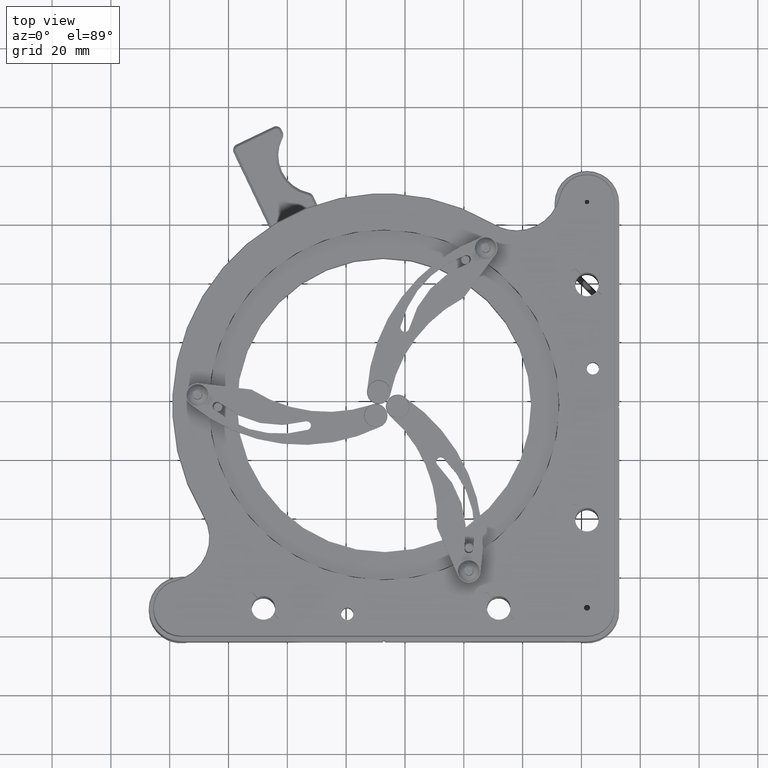
[diagram: clean part render]
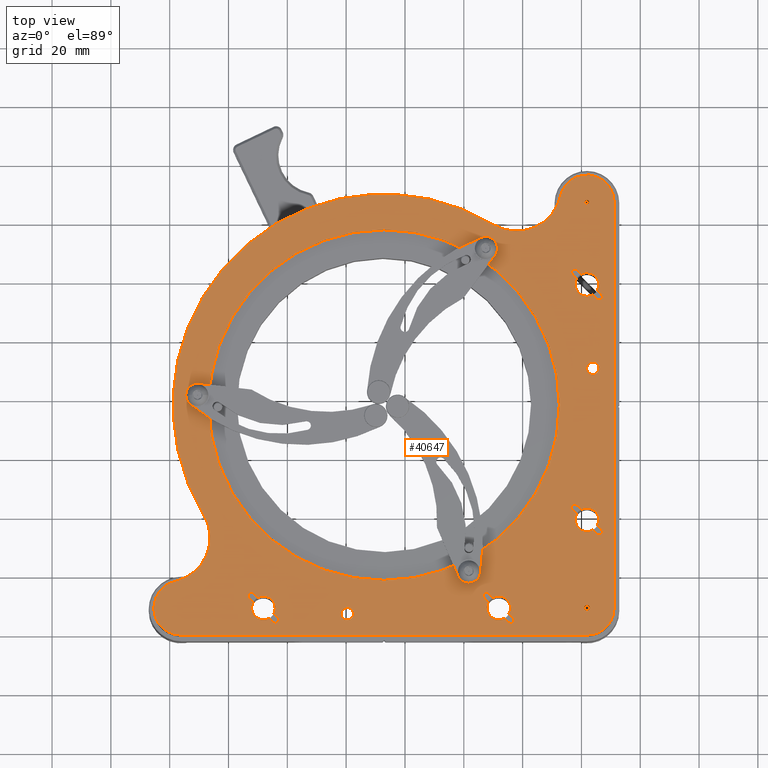
[diagram: same view with one face highlighted and labeled with its STEP entity id]
A machine part, top view. The second image highlights one B-rep face of the part: STEP entity #40647.
In plain terms, the highlighted planar face has unit normal (0, 0, 1).
Its self-contained STEP definition (entity closure, byte-faithful):
#2 = AXIS2_PLACEMENT_3D ( 'NONE', #2070, #14815, #40204 ) ;
#124 = ORIENTED_EDGE ( 'NONE', *, *, #26024, .T. ) ;
#172 = CARTESIAN_POINT ( 'NONE',  ( 101.8668844728350109, 58.71521029692328852, 101.7358086520721656 ) ) ;
#192 = EDGE_CURVE ( 'NONE', #4606, #10427, #24524, .T. ) ;
#358 = LINE ( 'NONE', #10639, #21539 ) ;
#369 = DIRECTION ( 'NONE',  ( 0.000000000000000000, 0.000000000000000000, 1.000000000000000000 ) ) ;
#505 = DIRECTION ( 'NONE',  ( -0.7071067811865491270, 0.7071067811865459074, 0.000000000000000000 ) ) ;
#539 = CARTESIAN_POINT ( 'NONE',  ( 67.45146319628928211, 73.97079136145769951, 101.7358086520721656 ) ) ;
#552 = CIRCLE ( 'NONE', #19903, 3.000000000000006661 ) ;
#592 = VERTEX_POINT ( 'NONE', #26783 ) ;
#643 = VERTEX_POINT ( 'NONE', #10748 ) ;
#705 = EDGE_CURVE ( 'NONE', #7742, #21427, #37984, .T. ) ;
#767 = ORIENTED_EDGE ( 'NONE', *, *, #29764, .F. ) ;
#915 = CARTESIAN_POINT ( 'NONE',  ( -3.218723397918454854, -54.71425759183146909, 101.7358086520721656 ) ) ;
#989 = AXIS2_PLACEMENT_3D ( 'NONE', #2164, #8661, #18237 ) ;
#1505 = CARTESIAN_POINT ( 'NONE',  ( 101.8668844728350109, 86.71521029692330274, 101.7358086520721656 ) ) ;
#1601 = CARTESIAN_POINT ( 'NONE',  ( 67.45146319628928211, 70.97079136145769951, 101.7358086520721656 ) ) ;
#1676 = CARTESIAN_POINT ( 'NONE',  ( 92.84406227035934478, 88.75265465260807218, 101.7358086520721656 ) ) ;
#1683 = CIRCLE ( 'NONE', #989, 1.049999999999981615 ) ;
#1698 = ORIENTED_EDGE ( 'NONE', *, *, #2356, .F. ) ;
#1724 = EDGE_CURVE ( 'NONE', #31429, #24226, #5086, .T. ) ;
#1779 = DIRECTION ( 'NONE',  ( -2.220446049250313081E-16, 1.000000000000000000, 0.000000000000000000 ) ) ;
#1839 = EDGE_LOOP ( 'NONE', ( #15439, #19803 ) ) ;
#1871 = ORIENTED_EDGE ( 'NONE', *, *, #39168, .T. ) ;
#1933 = VECTOR ( 'NONE', #22653, 999.9999999999998863 ) ;
#1941 = ORIENTED_EDGE ( 'NONE', *, *, #17736, .F. ) ;
#1944 = CARTESIAN_POINT ( 'NONE',  ( -41.90240936855207821, -44.05445440160329440, 101.7358086520721656 ) ) ;
#1949 = LINE ( 'NONE', #14690, #5251 ) ;
#1980 = VERTEX_POINT ( 'NONE', #30888 ) ;
#2013 = VERTEX_POINT ( 'NONE', #40639 ) ;
#2030 = CARTESIAN_POINT ( 'NONE',  ( -12.30504553616561303, -46.06285969407609571, 101.7358086520721656 ) ) ;
#2070 = CARTESIAN_POINT ( 'NONE',  ( 71.86688447283502512, -51.28478970307669726, 101.7358086520721656 ) ) ;
#2164 = CARTESIAN_POINT ( 'NONE',  ( 97.69495446383437809, 62.88714030592393556, 101.7358086520721656 ) ) ;
#2215 = EDGE_LOOP ( 'NONE', ( #11873, #6128 ) ) ;
#2278 = EDGE_CURVE ( 'NONE', #24255, #20476, #26375, .T. ) ;
#2309 = CARTESIAN_POINT ( 'NONE',  ( 101.8668844728350109, -21.28478970307671503, 101.7358086520721656 ) ) ;
#2347 = CIRCLE ( 'NONE', #34288, 4.000000000000007105 ) ;
#2356 = EDGE_CURVE ( 'NONE', #34133, #33261, #22363, .T. ) ;
#2414 = CARTESIAN_POINT ( 'NONE',  ( -8.133115527164974878, -51.28478970307672569, 101.7358086520721656 ) ) ;
#2417 = CARTESIAN_POINT ( 'NONE',  ( -30.54609098408041135, 21.03854351835087400, 101.7358086520721656 ) ) ;
#2464 = VERTEX_POINT ( 'NONE', #22266 ) ;
#2494 = VERTEX_POINT ( 'NONE', #19348 ) ;
#2501 = EDGE_CURVE ( 'NONE', #39215, #7742, #2347, .T. ) ;
#2509 = CARTESIAN_POINT ( 'NONE',  ( -36.13311552716498909, -51.28478970307672569, 101.7358086520721656 ) ) ;
#2562 = VERTEX_POINT ( 'NONE', #30170 ) ;
#2616 = DIRECTION ( 'NONE',  ( 0.7071067811865493491, -0.7071067811865456854, -0.000000000000000000 ) ) ;
#2650 = ORIENTED_EDGE ( 'NONE', *, *, #22900, .F. ) ;
#2702 = ORIENTED_EDGE ( 'NONE', *, *, #13205, .T. ) ;
#2798 = CIRCLE ( 'NONE', #34838, 4.000000000000010658 ) ;
#2800 = ORIENTED_EDGE ( 'NONE', *, *, #13859, .F. ) ;
#2896 = VERTEX_POINT ( 'NONE', #13400 ) ;
#2926 = FACE_BOUND ( 'NONE', #15202, .T. ) ;
#3066 = DIRECTION ( 'NONE',  ( 0.000000000000000000, 0.000000000000000000, 1.000000000000000000 ) ) ;
#3072 = VERTEX_POINT ( 'NONE', #37317 ) ;
#3086 = CARTESIAN_POINT ( 'NONE',  ( 101.8668844728350109, 86.71521029692330274, 101.7358086520721656 ) ) ;
#3099 = DIRECTION ( 'NONE',  ( -0.000000000000000000, -0.000000000000000000, -1.000000000000000000 ) ) ;
#3276 = DIRECTION ( 'NONE',  ( 0.000000000000000000, 0.000000000000000000, 1.000000000000000000 ) ) ;
#3307 = DIRECTION ( 'NONE',  ( 0.000000000000000000, 0.000000000000000000, 1.000000000000000000 ) ) ;
#3341 = FACE_BOUND ( 'NONE', #31637, .T. ) ;
#3358 = AXIS2_PLACEMENT_3D ( 'NONE', #40811, #18352, #25221 ) ;
#3381 = CIRCLE ( 'NONE', #36077, 3.000000000000002665 ) ;
#3420 = CARTESIAN_POINT ( 'NONE',  ( 32.86688447283498959, 77.31521029692328284, 101.7358086520721656 ) ) ;
#3526 = VERTEX_POINT ( 'NONE', #34341 ) ;
#3608 = VERTEX_POINT ( 'NONE', #539 ) ;
#3657 = DIRECTION ( 'NONE',  ( 0.000000000000000000, 1.000000000000000000, 0.000000000000000000 ) ) ;
#3747 = DIRECTION ( 'NONE',  ( 0.000000000000000000, 1.000000000000000000, 0.000000000000000000 ) ) ;
#3802 = CARTESIAN_POINT ( 'NONE',  ( 66.95249234358850288, -47.85532181432196808, 101.7358086520721656 ) ) ;
#3803 = EDGE_CURVE ( 'NONE', #2896, #24255, #34283, .T. ) ;
#3942 = VERTEX_POINT ( 'NONE', #18076 ) ;
#3943 = ORIENTED_EDGE ( 'NONE', *, *, #10500, .T. ) ;
#4112 = CARTESIAN_POINT ( 'NONE',  ( 101.8668844728349967, 87.46521029692330274, 101.7358086520721656 ) ) ;
#4158 = DIRECTION ( 'NONE',  ( 0.000000000000000000, 1.000000000000000000, 0.000000000000000000 ) ) ;
#4293 = CARTESIAN_POINT ( 'NONE',  ( 97.69495446383437809, -17.11285969407607510, 101.7358086520721656 ) ) ;
#4327 = DIRECTION ( 'NONE',  ( 2.602085213965203542E-15, 1.000000000000000000, 0.000000000000000000 ) ) ;
#4334 = EDGE_CURVE ( 'NONE', #643, #31429, #1949, .T. ) ;
#4343 = VERTEX_POINT ( 'NONE', #3802 ) ;
#4450 = AXIS2_PLACEMENT_3D ( 'NONE', #27394, #9039, #18217 ) ;
#4518 = AXIS2_PLACEMENT_3D ( 'NONE', #1505, #25460, #3747 ) ;
#4582 = CARTESIAN_POINT ( 'NONE',  ( 71.86688447283502512, -51.28478970307669726, 101.7358086520721656 ) ) ;
#4587 = DIRECTION ( 'NONE',  ( -0.7071067811865491270, 0.7071067811865459074, 0.000000000000000000 ) ) ;
#4600 = CARTESIAN_POINT ( 'NONE',  ( -8.133115527164973102, -55.28478970307673990, 101.7358086520721656 ) ) ;
#4606 = VERTEX_POINT ( 'NONE', #31045 ) ;
#4780 = DIRECTION ( 'NONE',  ( -0.7071067811865485719, 0.7071067811865465735, 0.000000000000000000 ) ) ;
#4969 = VECTOR ( 'NONE', #18140, 1000.000000000000000 ) ;
#4997 = CARTESIAN_POINT ( 'NONE',  ( 106.0388144818356437, 54.54328028792264860, 101.7358086520721656 ) ) ;
#5062 = DIRECTION ( 'NONE',  ( 0.000000000000000000, 1.000000000000000000, 0.000000000000000000 ) ) ;
#5086 = CIRCLE ( 'NONE', #15755, 71.75000000000004263 ) ;
#5141 = CIRCLE ( 'NONE', #4450, 4.000000000000010658 ) ;
#5185 = EDGE_CURVE ( 'NONE', #19740, #2494, #18480, .T. ) ;
#5251 = VECTOR ( 'NONE', #28017, 1000.000000000000000 ) ;
#5287 = AXIS2_PLACEMENT_3D ( 'NONE', #24491, #8231, #21370 ) ;
#5414 = DIRECTION ( 'NONE',  ( 0.000000000000000000, 1.000000000000000000, 0.000000000000000000 ) ) ;
#5423 = CARTESIAN_POINT ( 'NONE',  ( -38.17055988284980117, -42.26196750060095297, 101.7358086520721656 ) ) ;
#5480 = CIRCLE ( 'NONE', #28784, 4.000000000000010658 ) ;
#5623 = DIRECTION ( 'NONE',  ( 0.000000000000000000, 1.000000000000000000, 0.000000000000000000 ) ) ;
#5639 = CARTESIAN_POINT ( 'NONE',  ( 67.69495446383439230, -47.11285969407608576, 101.7358086520721656 ) ) ;
#5646 = DIRECTION ( 'NONE',  ( 0.000000000000000000, 0.000000000000000000, 1.000000000000000000 ) ) ;
#5696 = ORIENTED_EDGE ( 'NONE', *, *, #11036, .F. ) ;
#5818 = AXIS2_PLACEMENT_3D ( 'NONE', #2417, #21217, #15162 ) ;
#5918 = CARTESIAN_POINT ( 'NONE',  ( 77.96859863925072887, 92.11168453630460817, 101.7358086520721656 ) ) ;
#6076 = DIRECTION ( 'NONE',  ( -1.934186454050795746E-16, 1.000000000000000000, 0.000000000000000000 ) ) ;
#6128 = ORIENTED_EDGE ( 'NONE', *, *, #41099, .T. ) ;
#6154 = CARTESIAN_POINT ( 'NONE',  ( -3.218723397918454854, -54.71425759183146909, 101.7358086520721656 ) ) ;
#6220 = VERTEX_POINT ( 'NONE', #20054 ) ;
#6243 = CIRCLE ( 'NONE', #23479, 4.000000000000010658 ) ;
#6247 = CARTESIAN_POINT ( 'NONE',  ( -8.133115527164974878, -51.28478970307672569, 101.7358086520721656 ) ) ;
#6371 = DIRECTION ( 'NONE',  ( 0.000000000000000000, 1.000000000000000000, 0.000000000000000000 ) ) ;
#6498 = FACE_BOUND ( 'NONE', #1839, .T. ) ;
#6526 = DIRECTION ( 'NONE',  ( -2.168404344971002952E-15, 1.000000000000000000, 0.000000000000000000 ) ) ;
#6538 = CIRCLE ( 'NONE', #41097, 71.74999999999998579 ) ;
#6664 = CARTESIAN_POINT ( 'NONE',  ( 101.8668844728350109, -17.28478970307670792, 101.7358086520721656 ) ) ;
#6689 = DIRECTION ( 'NONE',  ( 0.000000000000000000, 0.000000000000000000, 1.000000000000000000 ) ) ;
#6690 = AXIS2_PLACEMENT_3D ( 'NONE', #13478, #17386, #5062 ) ;
#6712 = CARTESIAN_POINT ( 'NONE',  ( 101.8668844728350109, 58.71521029692328852, 101.7358086520721656 ) ) ;
#6729 = CARTESIAN_POINT ( 'NONE',  ( 67.69495446383439230, -46.06285969407608150, 101.7358086520721656 ) ) ;
#6877 = ORIENTED_EDGE ( 'NONE', *, *, #192, .T. ) ;
#6946 = ORIENTED_EDGE ( 'NONE', *, *, #28898, .F. ) ;
#6955 = ORIENTED_EDGE ( 'NONE', *, *, #23599, .F. ) ;
#7135 = EDGE_CURVE ( 'NONE', #8685, #34070, #37136, .T. ) ;
#7155 = AXIS2_PLACEMENT_3D ( 'NONE', #18267, #30981, #27857 ) ;
#7267 = EDGE_LOOP ( 'NONE', ( #6955, #29589 ) ) ;
#7274 = VERTEX_POINT ( 'NONE', #21953 ) ;
#7295 = EDGE_CURVE ( 'NONE', #2896, #3072, #5480, .T. ) ;
#7344 = DIRECTION ( 'NONE',  ( -1.934186454050794267E-16, 1.000000000000000000, 0.000000000000000000 ) ) ;
#7367 = CARTESIAN_POINT ( 'NONE',  ( 96.95249234358850288, 62.14467818567806034, 101.7358086520721656 ) ) ;
#7413 = CIRCLE ( 'NONE', #18079, 2.999999999999999556 ) ;
#7434 = ORIENTED_EDGE ( 'NONE', *, *, #35240, .F. ) ;
#7645 = ORIENTED_EDGE ( 'NONE', *, *, #22814, .T. ) ;
#7681 = ORIENTED_EDGE ( 'NONE', *, *, #17855, .T. ) ;
#7742 = VERTEX_POINT ( 'NONE', #40814 ) ;
#7824 = CIRCLE ( 'NONE', #13154, 4.000000000000010658 ) ;
#7866 = CARTESIAN_POINT ( 'NONE',  ( 94.63654917136157962, 92.48450413831038475, 101.7358086520721656 ) ) ;
#8151 = CARTESIAN_POINT ( 'NONE',  ( 101.8668844728350109, -21.28478970307671503, 101.7358086520721656 ) ) ;
#8223 = VERTEX_POINT ( 'NONE', #29322 ) ;
#8231 = DIRECTION ( 'NONE',  ( 0.000000000000000000, 0.000000000000000000, 1.000000000000000000 ) ) ;
#8242 = ORIENTED_EDGE ( 'NONE', *, *, #34250, .F. ) ;
#8245 = ORIENTED_EDGE ( 'NONE', *, *, #5185, .F. ) ;
#8273 = ORIENTED_EDGE ( 'NONE', *, *, #11503, .F. ) ;
#8492 = DIRECTION ( 'NONE',  ( -2.328487887217190883E-16, 1.000000000000000000, 0.000000000000000000 ) ) ;
#8516 = CARTESIAN_POINT ( 'NONE',  ( 32.86688447283500381, 17.71521029692329208, 101.7358086520721656 ) ) ;
#8532 = EDGE_LOOP ( 'NONE', ( #8245, #14719 ) ) ;
#8661 = DIRECTION ( 'NONE',  ( 0.000000000000000000, 0.000000000000000000, 1.000000000000000000 ) ) ;
#8685 = VERTEX_POINT ( 'NONE', #22982 ) ;
#8705 = AXIS2_PLACEMENT_3D ( 'NONE', #4582, #20658, #5414 ) ;
#8726 = VERTEX_POINT ( 'NONE', #6729 ) ;
#8782 = DIRECTION ( 'NONE',  ( 0.000000000000000000, 0.000000000000000000, 1.000000000000000000 ) ) ;
#8792 = DIRECTION ( 'NONE',  ( 0.000000000000000000, 1.000000000000000000, 0.000000000000000000 ) ) ;
#8973 = CARTESIAN_POINT ( 'NONE',  ( 101.8668844728349967, 86.71521029692330274, 101.7358086520721656 ) ) ;
#9039 = DIRECTION ( 'NONE',  ( -0.000000000000000000, -0.000000000000000000, -1.000000000000000000 ) ) ;
#9047 = VECTOR ( 'NONE', #505, 1000.000000000000000 ) ;
#9058 = EDGE_CURVE ( 'NONE', #35125, #23797, #18374, .T. ) ;
#9116 = CARTESIAN_POINT ( 'NONE',  ( 105.2963523615897827, -26.19918183232322662, 101.7358086520721656 ) ) ;
#9121 = CARTESIAN_POINT ( 'NONE',  ( -12.30504553616561303, -47.11285969407609997, 101.7358086520721656 ) ) ;
#9167 = CARTESIAN_POINT ( 'NONE',  ( -4.703647638410211940, -56.19918183232323372, 101.7358086520721656 ) ) ;
#9310 = CARTESIAN_POINT ( 'NONE',  ( 68.43741658408025330, -46.37039757383020344, 101.7358086520721656 ) ) ;
#9385 = LINE ( 'NONE', #41227, #22044 ) ;
#9432 = FACE_BOUND ( 'NONE', #35053, .T. ) ;
#9477 = DIRECTION ( 'NONE',  ( 0.000000000000000000, 1.000000000000000000, 0.000000000000000000 ) ) ;
#9628 = FACE_BOUND ( 'NONE', #37146, .T. ) ;
#9638 = DIRECTION ( 'NONE',  ( 0.000000000000000000, 1.000000000000000000, 0.000000000000000000 ) ) ;
#9642 = CARTESIAN_POINT ( 'NONE',  ( -4.703647638410211940, -56.19918183232323372, 101.7358086520721656 ) ) ;
#9794 = DIRECTION ( 'NONE',  ( 1.000000000000000000, 2.220446049250313081E-16, 0.000000000000000000 ) ) ;
#9837 = CARTESIAN_POINT ( 'NONE',  ( 32.86688447283500381, 17.71521029692329208, 101.7358086520721656 ) ) ;
#9890 = AXIS2_PLACEMENT_3D ( 'NONE', #26549, #11126, #30291 ) ;
#9925 = CARTESIAN_POINT ( 'NONE',  ( 20.36688447283503578, -53.28478970307672569, 101.7358086520721656 ) ) ;
#10112 = VERTEX_POINT ( 'NONE', #36501 ) ;
#10427 = VERTEX_POINT ( 'NONE', #10856 ) ;
#10457 = CARTESIAN_POINT ( 'NONE',  ( 98.39518253168662909, -19.29801200242005876, 101.7358086520721656 ) ) ;
#10500 = EDGE_CURVE ( 'NONE', #24226, #35125, #36718, .T. ) ;
#10639 = CARTESIAN_POINT ( 'NONE',  ( 105.2963523615897827, 53.80081816767677338, 101.7358086520721656 ) ) ;
#10663 = CARTESIAN_POINT ( 'NONE',  ( 106.7812766020815189, 55.28574240816850960, 101.7358086520721656 ) ) ;
#10689 = AXIS2_PLACEMENT_3D ( 'NONE', #8516, #15381, #27685 ) ;
#10748 = CARTESIAN_POINT ( 'NONE',  ( -38.79799576762705016, 21.20912502402109467, 101.7358086520721656 ) ) ;
#10772 = CARTESIAN_POINT ( 'NONE',  ( -6.146337826508328384, -54.75649164422512882, 101.7358086520721656 ) ) ;
#10813 = CARTESIAN_POINT ( 'NONE',  ( 67.45146319628928211, 70.97079136145769951, 101.7358086520721656 ) ) ;
#10845 = VERTEX_POINT ( 'NONE', #27044 ) ;
#10856 = CARTESIAN_POINT ( 'NONE',  ( 111.1168844728349967, 86.71521029692333116, 101.7358086520721656 ) ) ;
#10886 = VERTEX_POINT ( 'NONE', #17049 ) ;
#11003 = VECTOR ( 'NONE', #32114, 1000.000000000000000 ) ;
#11036 = EDGE_CURVE ( 'NONE', #20005, #2013, #30696, .T. ) ;
#11058 = AXIS2_PLACEMENT_3D ( 'NONE', #2509, #5646, #8792 ) ;
#11126 = DIRECTION ( 'NONE',  ( 0.000000000000000000, 0.000000000000000000, 1.000000000000000000 ) ) ;
#11164 = DIRECTION ( 'NONE',  ( 0.000000000000000000, 1.000000000000000000, 0.000000000000000000 ) ) ;
#11209 = VERTEX_POINT ( 'NONE', #35722 ) ;
#11289 = ORIENTED_EDGE ( 'NONE', *, *, #13762, .F. ) ;
#11402 = AXIS2_PLACEMENT_3D ( 'NONE', #39680, #14265, #11164 ) ;
#11489 = CARTESIAN_POINT ( 'NONE',  ( 101.8668844728349967, 86.71521029692330274, 101.7358086520721656 ) ) ;
#11503 = EDGE_CURVE ( 'NONE', #34941, #24406, #17413, .T. ) ;
#11570 = CARTESIAN_POINT ( 'NONE',  ( -10.11989322782162759, -47.81308776192832255, 101.7358086520721656 ) ) ;
#11586 = VECTOR ( 'NONE', #4587, 1000.000000000000000 ) ;
#11616 = CIRCLE ( 'NONE', #18934, 4.000000000000010658 ) ;
#11720 = AXIS2_PLACEMENT_3D ( 'NONE', #26678, #27302, #30011 ) ;
#11734 = CARTESIAN_POINT ( 'NONE',  ( 75.29635236158978273, -56.19918183232320530, 101.7358086520721656 ) ) ;
#11873 = ORIENTED_EDGE ( 'NONE', *, *, #27130, .T. ) ;
#11901 = CARTESIAN_POINT ( 'NONE',  ( 76.78127660208154737, -54.71425759183146909, 101.7358086520721656 ) ) ;
#12083 = CARTESIAN_POINT ( 'NONE',  ( 106.7812766020815189, -24.71425759183149040, 101.7358086520721656 ) ) ;
#12109 = ORIENTED_EDGE ( 'NONE', *, *, #3803, .F. ) ;
#12112 = VERTEX_POINT ( 'NONE', #4112 ) ;
#12116 = VERTEX_POINT ( 'NONE', #7866 ) ;
#12158 = ORIENTED_EDGE ( 'NONE', *, *, #16259, .F. ) ;
#12291 = LINE ( 'NONE', #9167, #4969 ) ;
#12293 = CARTESIAN_POINT ( 'NONE',  ( 97.69495446383437809, -16.06285969407609215, 101.7358086520721656 ) ) ;
#12318 = EDGE_CURVE ( 'NONE', #28506, #2464, #32168, .T. ) ;
#12377 = DIRECTION ( 'NONE',  ( 0.000000000000000000, 0.000000000000000000, 1.000000000000000000 ) ) ;
#12606 = CARTESIAN_POINT ( 'NONE',  ( 103.8668844728350109, 28.11521029692330842, 101.7358086520721656 ) ) ;
#12715 = LINE ( 'NONE', #16248, #31793 ) ;
#12725 = ORIENTED_EDGE ( 'NONE', *, *, #21538, .F. ) ;
#12754 = FACE_OUTER_BOUND ( 'NONE', #29730, .T. ) ;
#12767 = ORIENTED_EDGE ( 'NONE', *, *, #29249, .T. ) ;
#12803 = ORIENTED_EDGE ( 'NONE', *, *, #27361, .T. ) ;
#12954 = AXIS2_PLACEMENT_3D ( 'NONE', #2309, #40447, #38767 ) ;
#12972 = CARTESIAN_POINT ( 'NONE',  ( 105.2963523615897827, -26.19918183232322662, 101.7358086520721656 ) ) ;
#13001 = VERTEX_POINT ( 'NONE', #23866 ) ;
#13154 = AXIS2_PLACEMENT_3D ( 'NONE', #28110, #3066, #15809 ) ;
#13202 = CARTESIAN_POINT ( 'NONE',  ( -11.60481746831338512, -49.29801200242008719, 101.7358086520721656 ) ) ;
#13205 = EDGE_CURVE ( 'NONE', #26307, #3526, #28901, .T. ) ;
#13268 = DIRECTION ( 'NONE',  ( 0.7071067811865473507, -0.7071067811865477948, -0.000000000000000000 ) ) ;
#13337 = VECTOR ( 'NONE', #18189, 1000.000000000000000 ) ;
#13338 = DIRECTION ( 'NONE',  ( 0.000000000000000000, 1.000000000000000000, 0.000000000000000000 ) ) ;
#13368 = VECTOR ( 'NONE', #4780, 1000.000000000000000 ) ;
#13400 = CARTESIAN_POINT ( 'NONE',  ( 73.85366217349168494, -54.75649164422508619, 101.7358086520721656 ) ) ;
#13447 = ORIENTED_EDGE ( 'NONE', *, *, #14737, .F. ) ;
#13478 = CARTESIAN_POINT ( 'NONE',  ( 101.8668844728350109, 58.71521029692328852, 101.7358086520721656 ) ) ;
#13527 = AXIS2_PLACEMENT_3D ( 'NONE', #2414, #34290, #28271 ) ;
#13585 = AXIS2_PLACEMENT_3D ( 'NONE', #5918, #18646, #9477 ) ;
#13628 = ORIENTED_EDGE ( 'NONE', *, *, #35245, .T. ) ;
#13692 = ORIENTED_EDGE ( 'NONE', *, *, #26424, .F. ) ;
#13711 = CARTESIAN_POINT ( 'NONE',  ( 101.8668844728350109, -25.28478970307671858, 101.7358086520721656 ) ) ;
#13762 = EDGE_CURVE ( 'NONE', #27757, #36379, #33564, .T. ) ;
#13856 = CIRCLE ( 'NONE', #4518, 9.249999999999896971 ) ;
#13859 = EDGE_CURVE ( 'NONE', #21437, #19236, #39181, .T. ) ;
#13900 = DIRECTION ( 'NONE',  ( 0.000000000000000000, 0.000000000000000000, 1.000000000000000000 ) ) ;
#13991 = ORIENTED_EDGE ( 'NONE', *, *, #31212, .T. ) ;
#14018 = CIRCLE ( 'NONE', #26672, 0.7500000000000006661 ) ;
#14145 = EDGE_CURVE ( 'NONE', #15900, #34941, #12291, .T. ) ;
#14158 = EDGE_CURVE ( 'NONE', #10427, #12116, #28280, .T. ) ;
#14265 = DIRECTION ( 'NONE',  ( 0.000000000000000000, 0.000000000000000000, 1.000000000000000000 ) ) ;
#14361 = ORIENTED_EDGE ( 'NONE', *, *, #35885, .T. ) ;
#14382 = EDGE_CURVE ( 'NONE', #13001, #14577, #1683, .T. ) ;
#14478 = DIRECTION ( 'NONE',  ( 0.000000000000000000, 1.000000000000000000, 0.000000000000000000 ) ) ;
#14577 = VERTEX_POINT ( 'NONE', #7367 ) ;
#14690 = CARTESIAN_POINT ( 'NONE',  ( -38.79799576762703595, -37.60577697055940405, 101.7358086520721656 ) ) ;
#14719 = ORIENTED_EDGE ( 'NONE', *, *, #16077, .F. ) ;
#14727 = VERTEX_POINT ( 'NONE', #20704 ) ;
#14737 = EDGE_CURVE ( 'NONE', #40227, #37304, #27573, .T. ) ;
#14752 = EDGE_CURVE ( 'NONE', #4343, #19970, #40250, .T. ) ;
#14815 = DIRECTION ( 'NONE',  ( -0.000000000000000000, -0.000000000000000000, -1.000000000000000000 ) ) ;
#14895 = ORIENTED_EDGE ( 'NONE', *, *, #39170, .F. ) ;
#15159 = EDGE_CURVE ( 'NONE', #35169, #19641, #19359, .T. ) ;
#15162 = DIRECTION ( 'NONE',  ( -0.8660254037844429265, -0.4999999999999924505, 0.000000000000000000 ) ) ;
#15179 = EDGE_CURVE ( 'NONE', #20476, #7274, #26697, .T. ) ;
#15202 = EDGE_LOOP ( 'NONE', ( #37516, #1698 ) ) ;
#15255 = AXIS2_PLACEMENT_3D ( 'NONE', #18303, #28298, #34531 ) ;
#15381 = DIRECTION ( 'NONE',  ( 0.000000000000000000, 0.000000000000000000, 1.000000000000000000 ) ) ;
#15439 = ORIENTED_EDGE ( 'NONE', *, *, #20773, .F. ) ;
#15485 = CARTESIAN_POINT ( 'NONE',  ( 71.86688447283502512, -51.28478970307669726, 101.7358086520721656 ) ) ;
#15494 = VECTOR ( 'NONE', #21331, 999.9999999999998863 ) ;
#15511 = DIRECTION ( 'NONE',  ( -0.7071067811865479058, 0.7071067811865471286, 0.000000000000000000 ) ) ;
#15677 = DIRECTION ( 'NONE',  ( 0.000000000000000000, 0.000000000000000000, 1.000000000000000000 ) ) ;
#15704 = CARTESIAN_POINT ( 'NONE',  ( -11.56258341591973782, -46.37039757383021765, 101.7358086520721656 ) ) ;
#15710 = CARTESIAN_POINT ( 'NONE',  ( -8.133115527164974878, -51.28478970307672569, 101.7358086520721656 ) ) ;
#15751 = CIRCLE ( 'NONE', #41087, 2.099999999999997868 ) ;
#15755 = AXIS2_PLACEMENT_3D ( 'NONE', #36070, #16731, #7344 ) ;
#15762 = ORIENTED_EDGE ( 'NONE', *, *, #30576, .F. ) ;
#15801 = CIRCLE ( 'NONE', #37078, 0.7500000000000006661 ) ;
#15809 = DIRECTION ( 'NONE',  ( 0.000000000000000000, 1.000000000000000000, 0.000000000000000000 ) ) ;
#15900 = VERTEX_POINT ( 'NONE', #10772 ) ;
#15911 = DIRECTION ( 'NONE',  ( 0.000000000000000000, 1.000000000000000000, 0.000000000000000000 ) ) ;
#15995 = AXIS2_PLACEMENT_3D ( 'NONE', #28495, #22661, #3657 ) ;
#16077 = EDGE_CURVE ( 'NONE', #2494, #19740, #7413, .T. ) ;
#16085 = FACE_BOUND ( 'NONE', #2215, .T. ) ;
#16098 = DIRECTION ( 'NONE',  ( 0.000000000000000000, 0.000000000000000000, 1.000000000000000000 ) ) ;
#16118 = CARTESIAN_POINT ( 'NONE',  ( 103.8668844728350109, 30.21521029692330629, 101.7358086520721656 ) ) ;
#16197 = CARTESIAN_POINT ( 'NONE',  ( 61.69528120629593104, -41.86370398903824253, 101.7358086520721656 ) ) ;
#16234 = DIRECTION ( 'NONE',  ( 0.000000000000000000, 0.000000000000000000, 1.000000000000000000 ) ) ;
#16241 = ORIENTED_EDGE ( 'NONE', *, *, #34014, .F. ) ;
#16248 = CARTESIAN_POINT ( 'NONE',  ( 101.8668844728350393, -60.53478970307669016, 101.7358086520721656 ) ) ;
#16259 = EDGE_CURVE ( 'NONE', #14727, #12112, #14018, .T. ) ;
#16472 = VECTOR ( 'NONE', #2616, 1000.000000000000114 ) ;
#16643 = ORIENTED_EDGE ( 'NONE', *, *, #14752, .F. ) ;
#16680 = CARTESIAN_POINT ( 'NONE',  ( 97.69495446383437809, 62.88714030592393556, 101.7358086520721656 ) ) ;
#16702 = AXIS2_PLACEMENT_3D ( 'NONE', #24324, #37012, #8492 ) ;
#16723 = VERTEX_POINT ( 'NONE', #29155 ) ;
#16731 = DIRECTION ( 'NONE',  ( 0.000000000000000000, 0.000000000000000000, 1.000000000000000000 ) ) ;
#17049 = CARTESIAN_POINT ( 'NONE',  ( 96.95249234358850288, -17.85532181432194321, 101.7358086520721656 ) ) ;
#17366 = EDGE_CURVE ( 'NONE', #3942, #6220, #36820, .T. ) ;
#17386 = DIRECTION ( 'NONE',  ( 0.000000000000000000, 0.000000000000000000, 1.000000000000000000 ) ) ;
#17413 = CIRCLE ( 'NONE', #11402, 1.050000000000009148 ) ;
#17524 = CARTESIAN_POINT ( 'NONE',  ( 76.78127660208154737, -54.71425759183146909, 101.7358086520721656 ) ) ;
#17546 = CARTESIAN_POINT ( 'NONE',  ( 98.43741658408022488, -16.37039757383020699, 101.7358086520721656 ) ) ;
#17584 = EDGE_CURVE ( 'NONE', #24406, #1980, #23785, .T. ) ;
#17736 = EDGE_CURVE ( 'NONE', #21427, #40979, #30223, .T. ) ;
#17822 = CARTESIAN_POINT ( 'NONE',  ( 20.36688447283503578, -53.28478970307672569, 101.7358086520721656 ) ) ;
#17855 = EDGE_CURVE ( 'NONE', #15900, #21448, #11616, .T. ) ;
#17868 = CARTESIAN_POINT ( 'NONE',  ( 111.1168844728349967, 86.71521029692333116, 101.7358086520721656 ) ) ;
#17875 = CIRCLE ( 'NONE', #19871, 1.049999999999984945 ) ;
#18076 = CARTESIAN_POINT ( 'NONE',  ( 105.3385864139834069, 56.72843259626662871, 101.7358086520721656 ) ) ;
#18079 = AXIS2_PLACEMENT_3D ( 'NONE', #34824, #16098, #19016 ) ;
#18140 = DIRECTION ( 'NONE',  ( 0.7071067811865491270, -0.7071067811865459074, -0.000000000000000000 ) ) ;
#18189 = DIRECTION ( 'NONE',  ( 0.7071067811865491270, -0.7071067811865459074, -0.000000000000000000 ) ) ;
#18213 = AXIS2_PLACEMENT_3D ( 'NONE', #16118, #12377, #15911 ) ;
#18217 = DIRECTION ( 'NONE',  ( -4.336808689942006396E-16, 1.000000000000000000, 0.000000000000000000 ) ) ;
#18237 = DIRECTION ( 'NONE',  ( 0.000000000000000000, 1.000000000000000000, 0.000000000000000000 ) ) ;
#18267 = CARTESIAN_POINT ( 'NONE',  ( -36.13311552716498909, -51.28478970307672569, 101.7358086520721656 ) ) ;
#18269 = ORIENTED_EDGE ( 'NONE', *, *, #39083, .T. ) ;
#18303 = CARTESIAN_POINT ( 'NONE',  ( 101.8668844728350109, -21.28478970307671503, 101.7358086520721656 ) ) ;
#18304 = ORIENTED_EDGE ( 'NONE', *, *, #35853, .T. ) ;
#18318 = DIRECTION ( 'NONE',  ( 0.000000000000000000, 0.000000000000000000, 1.000000000000000000 ) ) ;
#18352 = DIRECTION ( 'NONE',  ( 0.000000000000000000, 0.000000000000000000, 1.000000000000000000 ) ) ;
#18367 = DIRECTION ( 'NONE',  ( 0.000000000000000000, 1.000000000000000000, 0.000000000000000000 ) ) ;
#18374 = CIRCLE ( 'NONE', #11058, 9.250000000000056843 ) ;
#18412 = EDGE_LOOP ( 'NONE', ( #7434, #12158 ) ) ;
#18480 = CIRCLE ( 'NONE', #5818, 2.999999999999999556 ) ;
#18502 = CARTESIAN_POINT ( 'NONE',  ( 105.2963523615897827, 53.80081816767677338, 101.7358086520721656 ) ) ;
#18603 = FACE_BOUND ( 'NONE', #8532, .T. ) ;
#18646 = DIRECTION ( 'NONE',  ( -0.000000000000000000, -0.000000000000000000, -1.000000000000000000 ) ) ;
#18880 = AXIS2_PLACEMENT_3D ( 'NONE', #6712, #19433, #9638 ) ;
#18934 = AXIS2_PLACEMENT_3D ( 'NONE', #6247, #3099, #4327 ) ;
#19015 = DIRECTION ( 'NONE',  ( -0.000000000000000000, -0.000000000000000000, -1.000000000000000000 ) ) ;
#19016 = DIRECTION ( 'NONE',  ( -0.8660254037844429265, -0.4999999999999924505, 0.000000000000000000 ) ) ;
#19045 = CARTESIAN_POINT ( 'NONE',  ( 106.7812766020815189, -24.71425759183149040, 101.7358086520721656 ) ) ;
#19226 = EDGE_CURVE ( 'NONE', #14577, #30708, #358, .T. ) ;
#19236 = VERTEX_POINT ( 'NONE', #19589 ) ;
#19348 = CARTESIAN_POINT ( 'NONE',  ( -30.54609098408041135, 18.03854351835087044, 101.7358086520721656 ) ) ;
#19359 = CIRCLE ( 'NONE', #8705, 4.000000000000010658 ) ;
#19433 = DIRECTION ( 'NONE',  ( 0.000000000000000000, 0.000000000000000000, 1.000000000000000000 ) ) ;
#19475 = CARTESIAN_POINT ( 'NONE',  ( 61.69528120629593104, -35.86370398903823542, 101.7358086520721656 ) ) ;
#19525 = ORIENTED_EDGE ( 'NONE', *, *, #7295, .T. ) ;
#19539 = DIRECTION ( 'NONE',  ( 0.000000000000000000, 0.000000000000000000, 1.000000000000000000 ) ) ;
#19589 = CARTESIAN_POINT ( 'NONE',  ( 98.43741658408022488, 63.62960242616980366, 101.7358086520721656 ) ) ;
#19641 = VERTEX_POINT ( 'NONE', #32025 ) ;
#19738 = LINE ( 'NONE', #22858, #27709 ) ;
#19740 = VERTEX_POINT ( 'NONE', #39302 ) ;
#19753 = DIRECTION ( 'NONE',  ( 0.000000000000000000, 1.000000000000000000, 0.000000000000000000 ) ) ;
#19760 = EDGE_CURVE ( 'NONE', #33261, #34133, #552, .T. ) ;
#19798 = CARTESIAN_POINT ( 'NONE',  ( 103.8668844728350109, 32.31521029692330416, 101.7358086520721656 ) ) ;
#19803 = ORIENTED_EDGE ( 'NONE', *, *, #41080, .F. ) ;
#19871 = AXIS2_PLACEMENT_3D ( 'NONE', #4293, #13900, #20785 ) ;
#19903 = AXIS2_PLACEMENT_3D ( 'NONE', #23895, #30156, #33263 ) ;
#19970 = VERTEX_POINT ( 'NONE', #25130 ) ;
#20005 = VERTEX_POINT ( 'NONE', #3420 ) ;
#20054 = CARTESIAN_POINT ( 'NONE',  ( 101.8668844728350109, 62.71521029692329563, 101.7358086520721656 ) ) ;
#20201 = DIRECTION ( 'NONE',  ( 0.000000000000000000, 1.000000000000000000, 0.000000000000000000 ) ) ;
#20372 = ORIENTED_EDGE ( 'NONE', *, *, #34104, .F. ) ;
#20466 = DIRECTION ( 'NONE',  ( 0.000000000000000000, 0.000000000000000000, 1.000000000000000000 ) ) ;
#20476 = VERTEX_POINT ( 'NONE', #11901 ) ;
#20658 = DIRECTION ( 'NONE',  ( -0.000000000000000000, -0.000000000000000000, -1.000000000000000000 ) ) ;
#20704 = CARTESIAN_POINT ( 'NONE',  ( 101.8668844728349967, 85.96521029692330274, 101.7358086520721656 ) ) ;
#20732 = ORIENTED_EDGE ( 'NONE', *, *, #20928, .F. ) ;
#20773 = EDGE_CURVE ( 'NONE', #3608, #36778, #33838, .T. ) ;
#20785 = DIRECTION ( 'NONE',  ( 0.000000000000000000, 1.000000000000000000, 0.000000000000000000 ) ) ;
#20804 = EDGE_CURVE ( 'NONE', #10845, #39215, #29882, .T. ) ;
#20825 = AXIS2_PLACEMENT_3D ( 'NONE', #9837, #15677, #28384 ) ;
#20835 = VERTEX_POINT ( 'NONE', #2030 ) ;
#20885 = VERTEX_POINT ( 'NONE', #38263 ) ;
#20928 = EDGE_CURVE ( 'NONE', #8726, #4343, #27205, .T. ) ;
#21217 = DIRECTION ( 'NONE',  ( 0.000000000000000000, 0.000000000000000000, 1.000000000000000000 ) ) ;
#21290 = CARTESIAN_POINT ( 'NONE',  ( 69.88010677217837952, -47.81308776192830834, 101.7358086520721656 ) ) ;
#21325 = CARTESIAN_POINT ( 'NONE',  ( -4.703647638410211940, -56.19918183232323372, 101.7358086520721656 ) ) ;
#21327 = VECTOR ( 'NONE', #27778, 1000.000000000000114 ) ;
#21331 = DIRECTION ( 'NONE',  ( 0.7071067811865473507, -0.7071067811865477948, -0.000000000000000000 ) ) ;
#21370 = DIRECTION ( 'NONE',  ( 0.000000000000000000, 1.000000000000000000, 0.000000000000000000 ) ) ;
#21427 = VERTEX_POINT ( 'NONE', #17546 ) ;
#21437 = VERTEX_POINT ( 'NONE', #33968 ) ;
#21448 = VERTEX_POINT ( 'NONE', #4600 ) ;
#21502 = VERTEX_POINT ( 'NONE', #36891 ) ;
#21538 = EDGE_CURVE ( 'NONE', #23495, #8726, #23926, .T. ) ;
#21539 = VECTOR ( 'NONE', #39351, 999.9999999999998863 ) ;
#21703 = DIRECTION ( 'NONE',  ( 0.000000000000000000, 0.000000000000000000, 1.000000000000000000 ) ) ;
#21713 = ORIENTED_EDGE ( 'NONE', *, *, #1724, .T. ) ;
#21887 = DIRECTION ( 'NONE',  ( 0.000000000000000000, 0.000000000000000000, 1.000000000000000000 ) ) ;
#21953 = CARTESIAN_POINT ( 'NONE',  ( 75.33858641398342115, -53.27156740373334998, 101.7358086520721656 ) ) ;
#22009 = ORIENTED_EDGE ( 'NONE', *, *, #23148, .F. ) ;
#22044 = VECTOR ( 'NONE', #41016, 1000.000000000000000 ) ;
#22072 = DIRECTION ( 'NONE',  ( 0.8660254037844362651, -0.5000000000000038858, 0.000000000000000000 ) ) ;
#22263 = ORIENTED_EDGE ( 'NONE', *, *, #30431, .T. ) ;
#22266 = CARTESIAN_POINT ( 'NONE',  ( -8.133115527164976655, -47.28478970307671858, 101.7358086520721656 ) ) ;
#22281 = CARTESIAN_POINT ( 'NONE',  ( -12.30504553616561303, -47.11285969407609997, 101.7358086520721656 ) ) ;
#22304 = DIRECTION ( 'NONE',  ( 0.000000000000000000, 1.000000000000000000, 0.000000000000000000 ) ) ;
#22363 = CIRCLE ( 'NONE', #25693, 3.000000000000006661 ) ;
#22464 = ORIENTED_EDGE ( 'NONE', *, *, #31067, .F. ) ;
#22542 = CARTESIAN_POINT ( 'NONE',  ( 32.86688447283500381, 17.71521029692329208, 101.7358086520721656 ) ) ;
#22653 = DIRECTION ( 'NONE',  ( 0.7071067811865473507, -0.7071067811865477948, -0.000000000000000000 ) ) ;
#22661 = DIRECTION ( 'NONE',  ( 0.000000000000000000, 0.000000000000000000, 1.000000000000000000 ) ) ;
#22814 = EDGE_CURVE ( 'NONE', #2464, #1980, #5141, .T. ) ;
#22858 = CARTESIAN_POINT ( 'NONE',  ( 105.2963523615897827, -26.19918183232322662, 101.7358086520721656 ) ) ;
#22900 = EDGE_CURVE ( 'NONE', #19236, #13001, #31103, .T. ) ;
#22920 = ORIENTED_EDGE ( 'NONE', *, *, #2278, .F. ) ;
#22962 = DIRECTION ( 'NONE',  ( -3.469446951953605117E-15, 1.000000000000000000, 0.000000000000000000 ) ) ;
#22982 = CARTESIAN_POINT ( 'NONE',  ( 103.8536621734916707, 55.24350835577489960, 101.7358086520721656 ) ) ;
#23148 = EDGE_CURVE ( 'NONE', #6220, #21437, #7824, .T. ) ;
#23180 = ORIENTED_EDGE ( 'NONE', *, *, #14145, .F. ) ;
#23332 = EDGE_CURVE ( 'NONE', #40979, #10886, #17875, .T. ) ;
#23479 = AXIS2_PLACEMENT_3D ( 'NONE', #172, #6689, #25451 ) ;
#23495 = VERTEX_POINT ( 'NONE', #9310 ) ;
#23587 = ORIENTED_EDGE ( 'NONE', *, *, #14158, .T. ) ;
#23599 = EDGE_CURVE ( 'NONE', #2562, #21502, #30519, .T. ) ;
#23628 = ORIENTED_EDGE ( 'NONE', *, *, #17366, .F. ) ;
#23785 = LINE ( 'NONE', #36468, #11586 ) ;
#23797 = VERTEX_POINT ( 'NONE', #1944 ) ;
#23866 = CARTESIAN_POINT ( 'NONE',  ( 97.69495446383437809, 63.93714030592391140, 101.7358086520721656 ) ) ;
#23895 = CARTESIAN_POINT ( 'NONE',  ( 61.69528120629593104, -38.86370398903824253, 101.7358086520721656 ) ) ;
#23904 = ORIENTED_EDGE ( 'NONE', *, *, #25947, .F. ) ;
#23926 = CIRCLE ( 'NONE', #26532, 1.050000000000009148 ) ;
#23972 = DIRECTION ( 'NONE',  ( -0.000000000000000000, -0.000000000000000000, -1.000000000000000000 ) ) ;
#24116 = DIRECTION ( 'NONE',  ( 0.000000000000000000, 1.000000000000000000, 0.000000000000000000 ) ) ;
#24226 = VERTEX_POINT ( 'NONE', #26614 ) ;
#24255 = VERTEX_POINT ( 'NONE', #40724 ) ;
#24272 = DIRECTION ( 'NONE',  ( 0.000000000000000000, 0.000000000000000000, 1.000000000000000000 ) ) ;
#24324 = CARTESIAN_POINT ( 'NONE',  ( 32.86688447283500381, 17.71521029692329208, 101.7358086520721656 ) ) ;
#24406 = VERTEX_POINT ( 'NONE', #6154 ) ;
#24457 = VECTOR ( 'NONE', #1779, 1000.000000000000000 ) ;
#24459 = CARTESIAN_POINT ( 'NONE',  ( -38.79799576762705016, 14.22129556982443432, 101.7358086520721656 ) ) ;
#24491 = CARTESIAN_POINT ( 'NONE',  ( 103.8668844728350109, 30.21521029692330629, 101.7358086520721656 ) ) ;
#24507 = VERTEX_POINT ( 'NONE', #34876 ) ;
#24524 = LINE ( 'NONE', #17868, #24457 ) ;
#24659 = CIRCLE ( 'NONE', #6690, 4.000000000000010658 ) ;
#24716 = AXIS2_PLACEMENT_3D ( 'NONE', #35985, #29152, #25825 ) ;
#24848 = CIRCLE ( 'NONE', #18213, 2.099999999999997868 ) ;
#24851 = VERTEX_POINT ( 'NONE', #12972 ) ;
#24890 = VERTEX_POINT ( 'NONE', #15704 ) ;
#25110 = CIRCLE ( 'NONE', #33099, 4.000000000000007105 ) ;
#25126 = CIRCLE ( 'NONE', #7155, 9.249999999999994671 ) ;
#25130 = CARTESIAN_POINT ( 'NONE',  ( 68.39518253168661488, -49.29801200242007297, 101.7358086520721656 ) ) ;
#25162 = DIRECTION ( 'NONE',  ( 0.000000000000000000, 1.000000000000000000, 0.000000000000000000 ) ) ;
#25184 = ORIENTED_EDGE ( 'NONE', *, *, #15179, .F. ) ;
#25221 = DIRECTION ( 'NONE',  ( -1.934186454050797965E-16, 1.000000000000000000, 0.000000000000000000 ) ) ;
#25451 = DIRECTION ( 'NONE',  ( 0.000000000000000000, 1.000000000000000000, 0.000000000000000000 ) ) ;
#25460 = DIRECTION ( 'NONE',  ( 0.000000000000000000, 0.000000000000000000, 1.000000000000000000 ) ) ;
#25499 = ORIENTED_EDGE ( 'NONE', *, *, #14382, .F. ) ;
#25661 = EDGE_LOOP ( 'NONE', ( #37659, #13692, #41060, #33056, #25499, #2650, #2800, #22009, #23628, #26989, #15762 ) ) ;
#25667 = FACE_BOUND ( 'NONE', #7267, .T. ) ;
#25693 = AXIS2_PLACEMENT_3D ( 'NONE', #40988, #18318, #22072 ) ;
#25778 = LINE ( 'NONE', #9116, #1933 ) ;
#25825 = DIRECTION ( 'NONE',  ( 0.000000000000000000, 1.000000000000000000, 0.000000000000000000 ) ) ;
#25947 = EDGE_CURVE ( 'NONE', #33233, #30922, #24848, .T. ) ;
#26024 = EDGE_CURVE ( 'NONE', #21448, #37304, #2798, .T. ) ;
#26168 = DIRECTION ( 'NONE',  ( 0.000000000000000000, 0.000000000000000000, 1.000000000000000000 ) ) ;
#26307 = VERTEX_POINT ( 'NONE', #1676 ) ;
#26375 = CIRCLE ( 'NONE', #11720, 1.050000000000002265 ) ;
#26399 = EDGE_CURVE ( 'NONE', #24507, #3942, #31291, .T. ) ;
#26424 = EDGE_CURVE ( 'NONE', #31840, #8685, #6243, .T. ) ;
#26532 = AXIS2_PLACEMENT_3D ( 'NONE', #5639, #8782, #18367 ) ;
#26549 = CARTESIAN_POINT ( 'NONE',  ( 106.0388144818356437, -25.45671971207735140, 101.7358086520721656 ) ) ;
#26614 = CARTESIAN_POINT ( 'NONE',  ( -28.48882847745936431, -19.48074362767822976, 101.7358086520721656 ) ) ;
#26672 = AXIS2_PLACEMENT_3D ( 'NONE', #11489, #39591, #30248 ) ;
#26678 = CARTESIAN_POINT ( 'NONE',  ( 76.03881448183565794, -55.45671971207735140, 101.7358086520721656 ) ) ;
#26697 = LINE ( 'NONE', #17524, #13368 ) ;
#26707 = CIRCLE ( 'NONE', #24716, 1.000000000000000888 ) ;
#26783 = CARTESIAN_POINT ( 'NONE',  ( 101.8668844728350251, -52.28478970307669726, 101.7358086520721656 ) ) ;
#26831 = DIRECTION ( 'NONE',  ( -0.000000000000000000, -0.000000000000000000, -1.000000000000000000 ) ) ;
#26865 = ORIENTED_EDGE ( 'NONE', *, *, #2501, .F. ) ;
#26989 = ORIENTED_EDGE ( 'NONE', *, *, #26399, .F. ) ;
#27044 = CARTESIAN_POINT ( 'NONE',  ( 105.3385864139834069, -23.27156740373337129, 101.7358086520721656 ) ) ;
#27130 = EDGE_CURVE ( 'NONE', #592, #30504, #35734, .T. ) ;
#27129 = ORIENTED_EDGE ( 'NONE', *, *, #35004, .F. ) ;
#27205 = CIRCLE ( 'NONE', #30550, 1.050000000000009148 ) ;
#27302 = DIRECTION ( 'NONE',  ( 0.000000000000000000, 0.000000000000000000, 1.000000000000000000 ) ) ;
#27326 = CARTESIAN_POINT ( 'NONE',  ( 101.8668844728350251, -50.28478970307669726, 101.7358086520721656 ) ) ;
#27361 = EDGE_CURVE ( 'NONE', #23797, #16723, #25126, .T. ) ;
#27394 = CARTESIAN_POINT ( 'NONE',  ( -8.133115527164974878, -51.28478970307672569, 101.7358086520721656 ) ) ;
#27495 = EDGE_CURVE ( 'NONE', #21502, #2562, #15751, .T. ) ;
#27554 = EDGE_LOOP ( 'NONE', ( #23180, #7681, #124, #13447, #38748, #16241, #8242, #39812, #7645, #36160, #8273 ) ) ;
#27567 = AXIS2_PLACEMENT_3D ( 'NONE', #40813, #3307, #31873 ) ;
#27573 = LINE ( 'NONE', #21325, #13337 ) ;
#27685 = DIRECTION ( 'NONE',  ( -2.328487887217190883E-16, 1.000000000000000000, 0.000000000000000000 ) ) ;
#27709 = VECTOR ( 'NONE', #13268, 999.9999999999998863 ) ;
#27757 = VERTEX_POINT ( 'NONE', #10457 ) ;
#27778 = DIRECTION ( 'NONE',  ( 0.7071067811865493491, -0.7071067811865456854, -0.000000000000000000 ) ) ;
#27857 = DIRECTION ( 'NONE',  ( 0.000000000000000000, 1.000000000000000000, 0.000000000000000000 ) ) ;
#28017 = DIRECTION ( 'NONE',  ( 2.220446049250313081E-16, -1.000000000000000000, 0.000000000000000000 ) ) ;
#28075 = CARTESIAN_POINT ( 'NONE',  ( 67.45146319628928211, 67.97079136145769951, 101.7358086520721656 ) ) ;
#28092 = AXIS2_PLACEMENT_3D ( 'NONE', #32713, #23972, #4158 ) ;
#28110 = CARTESIAN_POINT ( 'NONE',  ( 101.8668844728350109, 58.71521029692328852, 101.7358086520721656 ) ) ;
#28189 = DIRECTION ( 'NONE',  ( -6.938893903907210234E-15, 1.000000000000000000, 0.000000000000000000 ) ) ;
#28271 = DIRECTION ( 'NONE',  ( 1.734723475976802558E-15, 1.000000000000000000, 0.000000000000000000 ) ) ;
#28280 = CIRCLE ( 'NONE', #39625, 9.249999999999994671 ) ;
#28298 = DIRECTION ( 'NONE',  ( 0.000000000000000000, 0.000000000000000000, 1.000000000000000000 ) ) ;
#28384 = DIRECTION ( 'NONE',  ( -2.220446049250313081E-16, 1.000000000000000000, 0.000000000000000000 ) ) ;
#28495 = CARTESIAN_POINT ( 'NONE',  ( 101.8668844728350251, -51.28478970307669726, 101.7358086520721656 ) ) ;
#28506 = VERTEX_POINT ( 'NONE', #11570 ) ;
#28536 = AXIS2_PLACEMENT_3D ( 'NONE', #1601, #32888, #36422 ) ;
#28574 = CARTESIAN_POINT ( 'NONE',  ( 106.7812766020815189, 55.28574240816850960, 101.7358086520721656 ) ) ;
#28589 = CIRCLE ( 'NONE', #5287, 2.099999999999997868 ) ;
#28784 = AXIS2_PLACEMENT_3D ( 'NONE', #15485, #19015, #28189 ) ;
#28795 = PLANE ( 'NONE',  #20825 ) ;
#28898 = EDGE_CURVE ( 'NONE', #24851, #36223, #33803, .T. ) ;
#28901 = CIRCLE ( 'NONE', #13585, 15.25000000000006928 ) ;
#28937 = DIRECTION ( 'NONE',  ( 0.000000000000000000, 0.000000000000000000, 1.000000000000000000 ) ) ;
#28951 = CARTESIAN_POINT ( 'NONE',  ( 98.39518253168662909, 60.70198799757994124, 101.7358086520721656 ) ) ;
#29152 = DIRECTION ( 'NONE',  ( -0.000000000000000000, -0.000000000000000000, -1.000000000000000000 ) ) ;
#29155 = CARTESIAN_POINT ( 'NONE',  ( -36.13311552716498909, -60.53478970307671858, 101.7358086520721656 ) ) ;
#29202 = DIRECTION ( 'NONE',  ( 0.000000000000000000, 0.000000000000000000, 1.000000000000000000 ) ) ;
#29249 = EDGE_CURVE ( 'NONE', #11209, #8223, #36240, .T. ) ;
#29322 = CARTESIAN_POINT ( 'NONE',  ( 29.37296974573716923, 89.38009053738535670, 101.7358086520721656 ) ) ;
#29327 = CARTESIAN_POINT ( 'NONE',  ( 67.69495446383439230, -47.11285969407608576, 101.7358086520721656 ) ) ;
#29518 = LINE ( 'NONE', #915, #9047 ) ;
#29589 = ORIENTED_EDGE ( 'NONE', *, *, #27495, .F. ) ;
#29730 = EDGE_LOOP ( 'NONE', ( #2702, #1871, #12767, #14361, #33162, #21713, #3943, #36723, #12803, #13628, #13991, #6877, #23587, #18304 ) ) ;
#29764 = EDGE_CURVE ( 'NONE', #35169, #23495, #34667, .T. ) ;
#29882 = CIRCLE ( 'NONE', #15255, 4.000000000000007105 ) ;
#30011 = DIRECTION ( 'NONE',  ( 0.000000000000000000, 1.000000000000000000, 0.000000000000000000 ) ) ;
#30031 = DIRECTION ( 'NONE',  ( -1.000000000000000000, -2.220446049250313081E-16, 0.000000000000000000 ) ) ;
#30156 = DIRECTION ( 'NONE',  ( 0.000000000000000000, 0.000000000000000000, 1.000000000000000000 ) ) ;
#30170 = CARTESIAN_POINT ( 'NONE',  ( 20.36688447283503578, -55.38478970307672711, 101.7358086520721656 ) ) ;
#30223 = CIRCLE ( 'NONE', #27567, 1.049999999999984945 ) ;
#30248 = DIRECTION ( 'NONE',  ( 0.000000000000000000, 1.000000000000000000, 0.000000000000000000 ) ) ;
#30291 = DIRECTION ( 'NONE',  ( 0.000000000000000000, 1.000000000000000000, 0.000000000000000000 ) ) ;
#30431 = EDGE_CURVE ( 'NONE', #3072, #19970, #37219, .T. ) ;
#30504 = VERTEX_POINT ( 'NONE', #27326 ) ;
#30519 = CIRCLE ( 'NONE', #37147, 2.099999999999997868 ) ;
#30532 = VECTOR ( 'NONE', #37187, 1000.000000000000000 ) ;
#30550 = AXIS2_PLACEMENT_3D ( 'NONE', #29327, #19539, #19753 ) ;
#30576 = EDGE_CURVE ( 'NONE', #34070, #24507, #37246, .T. ) ;
#30696 = CIRCLE ( 'NONE', #16702, 59.59999999999999432 ) ;
#30708 = VERTEX_POINT ( 'NONE', #28951 ) ;
#30715 = CARTESIAN_POINT ( 'NONE',  ( 105.2963523615897827, 53.80081816767677338, 101.7358086520721656 ) ) ;
#30888 = CARTESIAN_POINT ( 'NONE',  ( -4.661413586016571742, -53.27156740373336419, 101.7358086520721656 ) ) ;
#30922 = VERTEX_POINT ( 'NONE', #19798 ) ;
#30981 = DIRECTION ( 'NONE',  ( 0.000000000000000000, 0.000000000000000000, 1.000000000000000000 ) ) ;
#31045 = CARTESIAN_POINT ( 'NONE',  ( 111.1168844728350251, -51.28478970307669726, 101.7358086520721656 ) ) ;
#31067 = EDGE_CURVE ( 'NONE', #2013, #20005, #31956, .T. ) ;
#31103 = CIRCLE ( 'NONE', #33078, 1.049999999999981615 ) ;
#31135 = AXIS2_PLACEMENT_3D ( 'NONE', #36588, #26831, #24116 ) ;
#31212 = EDGE_CURVE ( 'NONE', #20885, #4606, #33939, .T. ) ;
#31261 = VECTOR ( 'NONE', #30031, 1000.000000000000000 ) ;
#31270 = EDGE_CURVE ( 'NONE', #30708, #31840, #24659, .T. ) ;
#31291 = LINE ( 'NONE', #28574, #35480 ) ;
#31429 = VERTEX_POINT ( 'NONE', #24459 ) ;
#31557 = CARTESIAN_POINT ( 'NONE',  ( 76.78127660208154737, -54.71425759183146909, 101.7358086520721656 ) ) ;
#31637 = EDGE_LOOP ( 'NONE', ( #23904, #33715 ) ) ;
#31677 = CIRCLE ( 'NONE', #36985, 1.050000000000009148 ) ;
#31687 = DIRECTION ( 'NONE',  ( -0.7071067811865479058, 0.7071067811865471286, 0.000000000000000000 ) ) ;
#31793 = VECTOR ( 'NONE', #9794, 1000.000000000000000 ) ;
#31840 = VERTEX_POINT ( 'NONE', #32668 ) ;
#31842 = CARTESIAN_POINT ( 'NONE',  ( 101.8668844728350109, -21.28478970307671503, 101.7358086520721656 ) ) ;
#31873 = DIRECTION ( 'NONE',  ( 0.000000000000000000, 1.000000000000000000, 0.000000000000000000 ) ) ;
#31906 = AXIS2_PLACEMENT_3D ( 'NONE', #32126, #41062, #22962 ) ;
#31916 = FACE_BOUND ( 'NONE', #27554, .T. ) ;
#31956 = CIRCLE ( 'NONE', #10689, 59.59999999999999432 ) ;
#32025 = CARTESIAN_POINT ( 'NONE',  ( 71.86688447283502512, -47.28478970307669016, 101.7358086520721656 ) ) ;
#32114 = DIRECTION ( 'NONE',  ( -0.7071067811865479058, 0.7071067811865471286, 0.000000000000000000 ) ) ;
#32126 = CARTESIAN_POINT ( 'NONE',  ( 71.86688447283502512, -51.28478970307669726, 101.7358086520721656 ) ) ;
#32168 = CIRCLE ( 'NONE', #13527, 4.000000000000010658 ) ;
#32300 = VECTOR ( 'NONE', #15511, 1000.000000000000000 ) ;
#32450 = DIRECTION ( 'NONE',  ( 0.000000000000000000, 1.000000000000000000, 0.000000000000000000 ) ) ;
#32668 = CARTESIAN_POINT ( 'NONE',  ( 101.8668844728350109, 54.71521029692327431, 101.7358086520721656 ) ) ;
#32713 = CARTESIAN_POINT ( 'NONE',  ( -41.52958976654627321, -27.38650386949243654, 101.7358086520721656 ) ) ;
#32888 = DIRECTION ( 'NONE',  ( 0.000000000000000000, 0.000000000000000000, 1.000000000000000000 ) ) ;
#33056 = ORIENTED_EDGE ( 'NONE', *, *, #19226, .F. ) ;
#33078 = AXIS2_PLACEMENT_3D ( 'NONE', #16680, #369, #13338 ) ;
#33099 = AXIS2_PLACEMENT_3D ( 'NONE', #8151, #20466, #36252 ) ;
#33162 = ORIENTED_EDGE ( 'NONE', *, *, #4334, .T. ) ;
#33233 = VERTEX_POINT ( 'NONE', #12606 ) ;
#33261 = VERTEX_POINT ( 'NONE', #19475 ) ;
#33263 = DIRECTION ( 'NONE',  ( 0.8660254037844362651, -0.5000000000000038858, 0.000000000000000000 ) ) ;
#33564 = CIRCLE ( 'NONE', #12954, 4.000000000000007105 ) ;
#33715 = ORIENTED_EDGE ( 'NONE', *, *, #37044, .F. ) ;
#33803 = CIRCLE ( 'NONE', #9890, 1.049999999999991829 ) ;
#33830 = AXIS2_PLACEMENT_3D ( 'NONE', #22281, #28937, #37890 ) ;
#33838 = CIRCLE ( 'NONE', #28536, 3.000000000000002665 ) ;
#33939 = CIRCLE ( 'NONE', #15995, 9.249999999999994671 ) ;
#33968 = CARTESIAN_POINT ( 'NONE',  ( 99.88010677217836530, 62.18691223807167034, 101.7358086520721656 ) ) ;
#34014 = EDGE_CURVE ( 'NONE', #24890, #20835, #31677, .T. ) ;
#34070 = VERTEX_POINT ( 'NONE', #18502 ) ;
#34104 = EDGE_CURVE ( 'NONE', #10886, #27757, #19738, .T. ) ;
#34133 = VERTEX_POINT ( 'NONE', #16197 ) ;
#34250 = EDGE_CURVE ( 'NONE', #28506, #24890, #29518, .T. ) ;
#34283 = LINE ( 'NONE', #37623, #16472 ) ;
#34288 = AXIS2_PLACEMENT_3D ( 'NONE', #31842, #3276, #32450 ) ;
#34290 = DIRECTION ( 'NONE',  ( -0.000000000000000000, -0.000000000000000000, -1.000000000000000000 ) ) ;
#34341 = CARTESIAN_POINT ( 'NONE',  ( 70.06283839743646524, 79.07092324721756427, 101.7358086520721656 ) ) ;
#34408 = FACE_BOUND ( 'NONE', #25661, .T. ) ;
#34531 = DIRECTION ( 'NONE',  ( 0.000000000000000000, 1.000000000000000000, 0.000000000000000000 ) ) ;
#34667 = LINE ( 'NONE', #31557, #30532 ) ;
#34707 = ORIENTED_EDGE ( 'NONE', *, *, #23332, .F. ) ;
#34714 = DIRECTION ( 'NONE',  ( 0.000000000000000000, 0.000000000000000000, 1.000000000000000000 ) ) ;
#34824 = CARTESIAN_POINT ( 'NONE',  ( -30.54609098408041135, 21.03854351835087400, 101.7358086520721656 ) ) ;
#34838 = AXIS2_PLACEMENT_3D ( 'NONE', #15710, #35039, #6526 ) ;
#34876 = CARTESIAN_POINT ( 'NONE',  ( 106.7812766020815189, 55.28574240816850960, 101.7358086520721656 ) ) ;
#34941 = VERTEX_POINT ( 'NONE', #9642 ) ;
#35004 = EDGE_CURVE ( 'NONE', #36379, #10112, #25110, .T. ) ;
#35010 = FACE_BOUND ( 'NONE', #39654, .T. ) ;
#35039 = DIRECTION ( 'NONE',  ( -0.000000000000000000, -0.000000000000000000, -1.000000000000000000 ) ) ;
#35053 = EDGE_LOOP ( 'NONE', ( #5696, #22464 ) ) ;
#35125 = VERTEX_POINT ( 'NONE', #5423 ) ;
#35169 = VERTEX_POINT ( 'NONE', #21290 ) ;
#35240 = EDGE_CURVE ( 'NONE', #12112, #14727, #15801, .T. ) ;
#35245 = EDGE_CURVE ( 'NONE', #16723, #20885, #12715, .T. ) ;
#35480 = VECTOR ( 'NONE', #31687, 1000.000000000000000 ) ;
#35588 = ORIENTED_EDGE ( 'NONE', *, *, #38003, .F. ) ;
#35722 = CARTESIAN_POINT ( 'NONE',  ( 36.36079919993098031, 89.38009053738535670, 101.7358086520721656 ) ) ;
#35734 = CIRCLE ( 'NONE', #31135, 1.000000000000000888 ) ;
#35840 = CARTESIAN_POINT ( 'NONE',  ( 29.36688447283498604, 89.38009053738535670, 101.7358086520721656 ) ) ;
#35853 = EDGE_CURVE ( 'NONE', #12116, #26307, #13856, .T. ) ;
#35885 = EDGE_CURVE ( 'NONE', #8223, #643, #6538, .T. ) ;
#35955 = CIRCLE ( 'NONE', #3358, 71.74999999999990052 ) ;
#35985 = CARTESIAN_POINT ( 'NONE',  ( 101.8668844728350251, -51.28478970307669726, 101.7358086520721656 ) ) ;
#36070 = CARTESIAN_POINT ( 'NONE',  ( 32.86688447283500381, 17.71521029692329208, 101.7358086520721656 ) ) ;
#36077 = AXIS2_PLACEMENT_3D ( 'NONE', #10813, #16234, #20201 ) ;
#36160 = ORIENTED_EDGE ( 'NONE', *, *, #17584, .F. ) ;
#36223 = VERTEX_POINT ( 'NONE', #12083 ) ;
#36240 = LINE ( 'NONE', #35840, #31261 ) ;
#36252 = DIRECTION ( 'NONE',  ( 0.000000000000000000, 1.000000000000000000, 0.000000000000000000 ) ) ;
#36291 = EDGE_CURVE ( 'NONE', #20835, #40227, #39166, .T. ) ;
#36379 = VERTEX_POINT ( 'NONE', #13711 ) ;
#36422 = DIRECTION ( 'NONE',  ( 0.000000000000000000, 1.000000000000000000, 0.000000000000000000 ) ) ;
#36468 = CARTESIAN_POINT ( 'NONE',  ( -3.218723397918454854, -54.71425759183146909, 101.7358086520721656 ) ) ;
#36501 = CARTESIAN_POINT ( 'NONE',  ( 103.8536621734916707, -24.75649164422510395, 101.7358086520721656 ) ) ;
#36588 = CARTESIAN_POINT ( 'NONE',  ( 101.8668844728350251, -51.28478970307669726, 101.7358086520721656 ) ) ;
#36718 = CIRCLE ( 'NONE', #28092, 15.24999999999994138 ) ;
#36723 = ORIENTED_EDGE ( 'NONE', *, *, #9058, .T. ) ;
#36778 = VERTEX_POINT ( 'NONE', #28075 ) ;
#36820 = CIRCLE ( 'NONE', #18880, 4.000000000000010658 ) ;
#36874 = DIRECTION ( 'NONE',  ( 0.000000000000000000, 0.000000000000000000, 1.000000000000000000 ) ) ;
#36891 = CARTESIAN_POINT ( 'NONE',  ( 20.36688447283503578, -51.18478970307673137, 101.7358086520721656 ) ) ;
#36985 = AXIS2_PLACEMENT_3D ( 'NONE', #9121, #34714, #25162 ) ;
#37012 = DIRECTION ( 'NONE',  ( 0.000000000000000000, 0.000000000000000000, 1.000000000000000000 ) ) ;
#37044 = EDGE_CURVE ( 'NONE', #30922, #33233, #28589, .T. ) ;
#37078 = AXIS2_PLACEMENT_3D ( 'NONE', #8973, #21703, #22304 ) ;
#37136 = LINE ( 'NONE', #30715, #15494 ) ;
#37146 = EDGE_LOOP ( 'NONE', ( #12109, #19525, #22263, #16643, #20732, #12725, #767, #39918, #18269, #25184, #22920 ) ) ;
#37147 = AXIS2_PLACEMENT_3D ( 'NONE', #9925, #26168, #6371 ) ;
#37187 = DIRECTION ( 'NONE',  ( -0.7071067811865485719, 0.7071067811865465735, 0.000000000000000000 ) ) ;
#37219 = CIRCLE ( 'NONE', #31906, 4.000000000000010658 ) ;
#37246 = CIRCLE ( 'NONE', #39250, 1.049999999999988498 ) ;
#37281 = DIRECTION ( 'NONE',  ( 0.000000000000000000, 1.000000000000000000, 0.000000000000000000 ) ) ;
#37304 = VERTEX_POINT ( 'NONE', #13202 ) ;
#37317 = CARTESIAN_POINT ( 'NONE',  ( 71.86688447283502512, -55.28478970307671148, 101.7358086520721656 ) ) ;
#37516 = ORIENTED_EDGE ( 'NONE', *, *, #19760, .F. ) ;
#37623 = CARTESIAN_POINT ( 'NONE',  ( 75.29635236158978273, -56.19918183232320530, 101.7358086520721656 ) ) ;
#37659 = ORIENTED_EDGE ( 'NONE', *, *, #7135, .F. ) ;
#37890 = DIRECTION ( 'NONE',  ( 0.000000000000000000, 1.000000000000000000, 0.000000000000000000 ) ) ;
#37946 = FACE_BOUND ( 'NONE', #18412, .T. ) ;
#37984 = LINE ( 'NONE', #19045, #32300 ) ;
#38003 = EDGE_CURVE ( 'NONE', #10112, #24851, #25778, .T. ) ;
#38263 = CARTESIAN_POINT ( 'NONE',  ( 101.8668844728350393, -60.53478970307669016, 101.7358086520721656 ) ) ;
#38401 = CARTESIAN_POINT ( 'NONE',  ( -13.04750765641149357, -47.85532181432198229, 101.7358086520721656 ) ) ;
#38748 = ORIENTED_EDGE ( 'NONE', *, *, #36291, .F. ) ;
#38767 = DIRECTION ( 'NONE',  ( 0.000000000000000000, 1.000000000000000000, 0.000000000000000000 ) ) ;
#39011 = ORIENTED_EDGE ( 'NONE', *, *, #20804, .F. ) ;
#39083 = EDGE_CURVE ( 'NONE', #19641, #7274, #39301, .T. ) ;
#39166 = CIRCLE ( 'NONE', #33830, 1.050000000000009148 ) ;
#39168 = EDGE_CURVE ( 'NONE', #3526, #11209, #35955, .T. ) ;
#39170 = EDGE_CURVE ( 'NONE', #36223, #10845, #9385, .T. ) ;
#39181 = LINE ( 'NONE', #10663, #11003 ) ;
#39215 = VERTEX_POINT ( 'NONE', #6664 ) ;
#39250 = AXIS2_PLACEMENT_3D ( 'NONE', #4997, #36874, #5623 ) ;
#39301 = CIRCLE ( 'NONE', #2, 4.000000000000010658 ) ;
#39302 = CARTESIAN_POINT ( 'NONE',  ( -30.54609098408041135, 24.03854351835087400, 101.7358086520721656 ) ) ;
#39351 = DIRECTION ( 'NONE',  ( 0.7071067811865473507, -0.7071067811865477948, -0.000000000000000000 ) ) ;
#39591 = DIRECTION ( 'NONE',  ( 0.000000000000000000, 0.000000000000000000, 1.000000000000000000 ) ) ;
#39625 = AXIS2_PLACEMENT_3D ( 'NONE', #3086, #21887, #37281 ) ;
#39654 = EDGE_LOOP ( 'NONE', ( #35588, #27129, #11289, #20372, #34707, #1941, #40275, #26865, #39011, #14895, #6946 ) ) ;
#39680 = CARTESIAN_POINT ( 'NONE',  ( -3.961185518164336727, -55.45671971207735140, 101.7358086520721656 ) ) ;
#39812 = ORIENTED_EDGE ( 'NONE', *, *, #12318, .T. ) ;
#39918 = ORIENTED_EDGE ( 'NONE', *, *, #15159, .T. ) ;
#40204 = DIRECTION ( 'NONE',  ( 0.000000000000000000, 1.000000000000000000, 0.000000000000000000 ) ) ;
#40227 = VERTEX_POINT ( 'NONE', #38401 ) ;
#40250 = LINE ( 'NONE', #11734, #21327 ) ;
#40275 = ORIENTED_EDGE ( 'NONE', *, *, #705, .F. ) ;
#40447 = DIRECTION ( 'NONE',  ( 0.000000000000000000, 0.000000000000000000, 1.000000000000000000 ) ) ;
#40639 = CARTESIAN_POINT ( 'NONE',  ( 32.86688447283501091, -41.88478970307670579, 101.7358086520721656 ) ) ;
#40647 = ADVANCED_FACE ( 'NONE', ( #12754, #3341, #25667, #16085, #31916, #9628, #35010, #34408, #2926, #18603, #6498, #9432, #37946 ), #28795, .T. ) ;
#40724 = CARTESIAN_POINT ( 'NONE',  ( 75.29635236158978273, -56.19918183232320530, 101.7358086520721656 ) ) ;
#40811 = CARTESIAN_POINT ( 'NONE',  ( 32.86688447283500381, 17.71521029692329208, 101.7358086520721656 ) ) ;
#40813 = CARTESIAN_POINT ( 'NONE',  ( 97.69495446383437809, -17.11285969407607510, 101.7358086520721656 ) ) ;
#40814 = CARTESIAN_POINT ( 'NONE',  ( 99.88010677217836530, -17.81308776192832966, 101.7358086520721656 ) ) ;
#40979 = VERTEX_POINT ( 'NONE', #12293 ) ;
#40988 = CARTESIAN_POINT ( 'NONE',  ( 61.69528120629593104, -38.86370398903824253, 101.7358086520721656 ) ) ;
#41016 = DIRECTION ( 'NONE',  ( -0.7071067811865479058, 0.7071067811865471286, 0.000000000000000000 ) ) ;
#41060 = ORIENTED_EDGE ( 'NONE', *, *, #31270, .F. ) ;
#41062 = DIRECTION ( 'NONE',  ( -0.000000000000000000, -0.000000000000000000, -1.000000000000000000 ) ) ;
#41080 = EDGE_CURVE ( 'NONE', #36778, #3608, #3381, .T. ) ;
#41087 = AXIS2_PLACEMENT_3D ( 'NONE', #17822, #24272, #14478 ) ;
#41097 = AXIS2_PLACEMENT_3D ( 'NONE', #22542, #29202, #6076 ) ;
#41099 = EDGE_CURVE ( 'NONE', #30504, #592, #26707, .T. ) ;
#41227 = CARTESIAN_POINT ( 'NONE',  ( 106.7812766020815189, -24.71425759183149040, 101.7358086520721656 ) ) ;